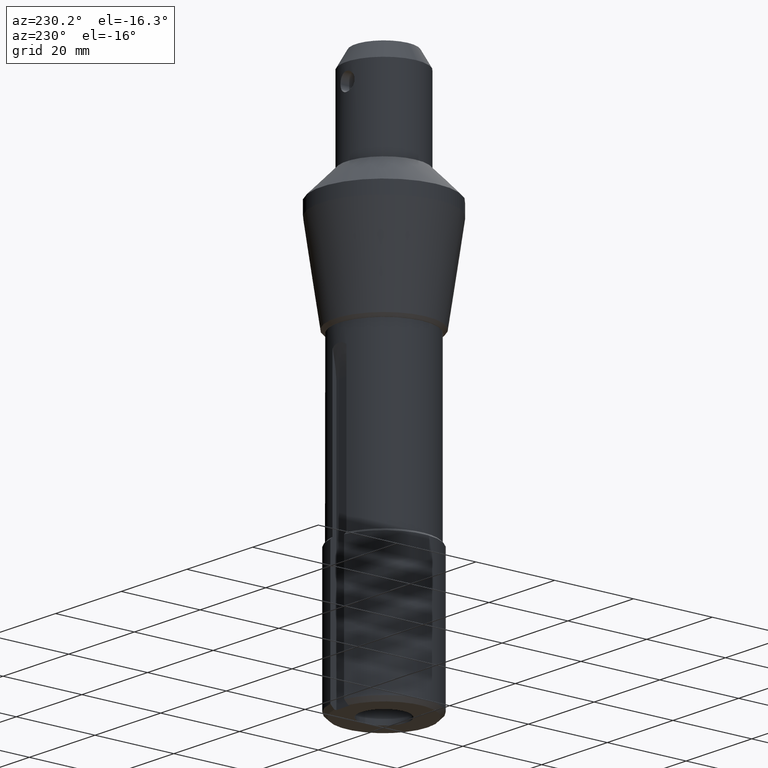
[diagram: clean part render]
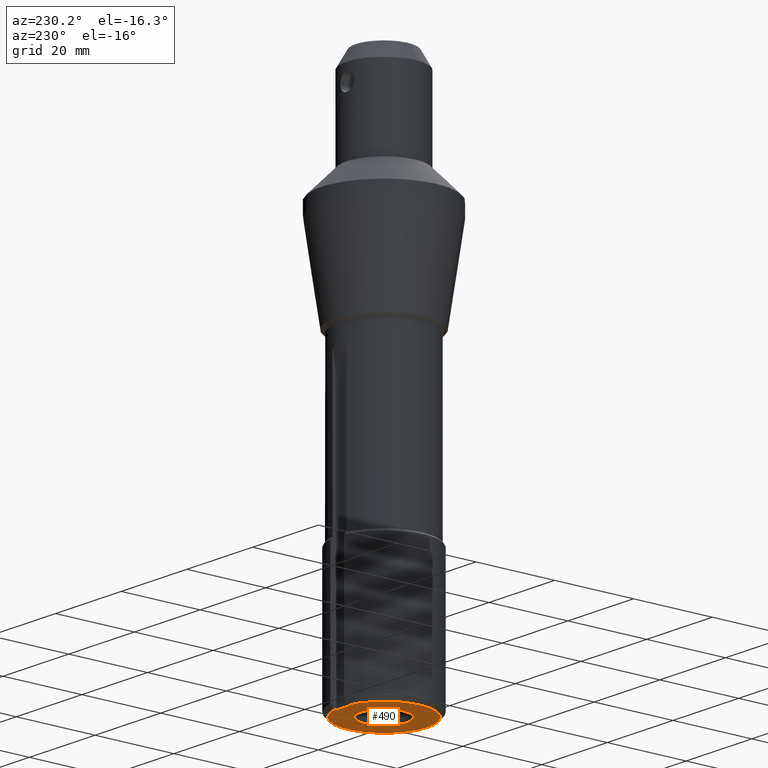
[diagram: same view with one face highlighted and labeled with its STEP entity id]
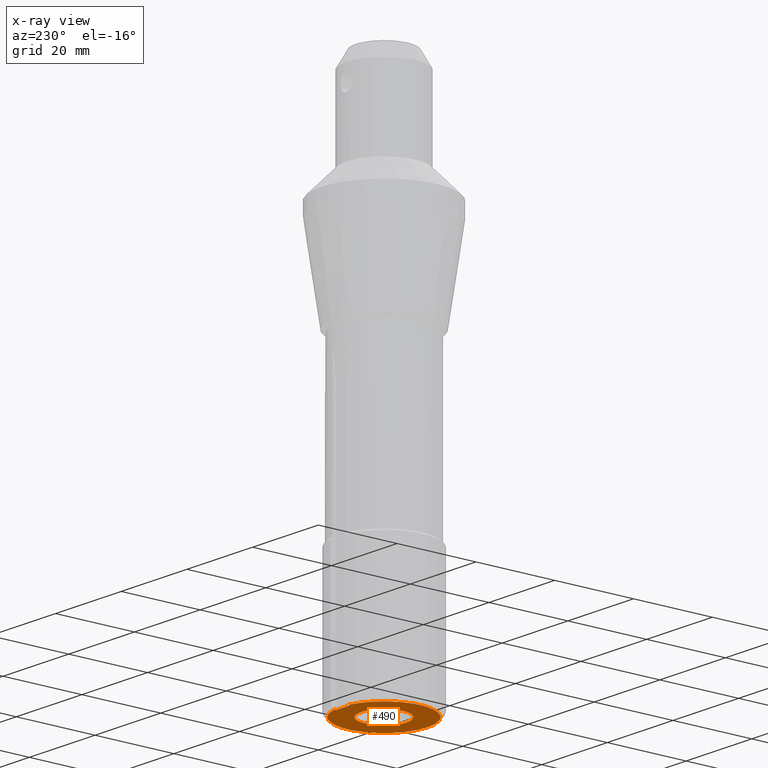
[diagram: x-ray of the same camera — body ghosted, the highlighted face saturated]
A machine part, auxiliary view. The second image highlights one B-rep face of the part: STEP entity #490.
The next image is the same camera in x-ray: the body ghosted, the highlighted face saturated — about 0% of this face is hidden behind the body in this view.
In plain terms, the highlighted planar face has unit normal (0, -0, 1).
Its self-contained STEP definition (entity closure, byte-faithful):
#55 = AXIS2_PLACEMENT_3D ( 'NONE', #510, #66, #755 ) ;
#64 = CARTESIAN_POINT ( 'NONE',  ( 0.0000000000000000000, 0.0000000000000000000, -101.5999999999998664 ) ) ;
#66 = DIRECTION ( 'NONE',  ( 0.0000000000000000000, -0.0000000000000000000, 1.000000000000000000 ) ) ;
#80 = CARTESIAN_POINT ( 'NONE',  ( 2.100000000000000089, 10.35000000000002274, -101.5999999999998380 ) ) ;
#94 = EDGE_CURVE ( 'NONE', #323, #323, #199, .T. ) ;
#125 = DIRECTION ( 'NONE',  ( -0.0000000000000000000, -0.0000000000000000000, 1.000000000000000000 ) ) ;
#129 = CARTESIAN_POINT ( 'NONE',  ( 0.0000000000000000000, 0.0000000000000000000, -101.5999999999998664 ) ) ;
#133 = CARTESIAN_POINT ( 'NONE',  ( -2.100000000000000089, 10.35000000000002274, -101.5999999999998380 ) ) ;
#140 = DIRECTION ( 'NONE',  ( -0.0000000000000000000, -0.0000000000000000000, 1.000000000000000000 ) ) ;
#143 = CARTESIAN_POINT ( 'NONE',  ( -2.100000000000000089, 10.84861742343229984, -101.5999999999998664 ) ) ;
#174 = ORIENTED_EDGE ( 'NONE', *, *, #94, .T. ) ;
#179 = EDGE_CURVE ( 'NONE', #496, #798, #411, .T. ) ;
#191 = FACE_OUTER_BOUND ( 'NONE', #408, .T. ) ;
#199 = CIRCLE ( 'NONE', #687, 5.749999999999921840 ) ;
#241 = VECTOR ( 'NONE', #261, 1000.000000000000000 ) ;
#261 = DIRECTION ( 'NONE',  ( 0.0000000000000000000, 1.000000000000000000, 0.0000000000000000000 ) ) ;
#318 = DIRECTION ( 'NONE',  ( 1.000000000000000000, 0.0000000000000000000, 0.0000000000000000000 ) ) ;
#323 = VERTEX_POINT ( 'NONE', #640 ) ;
#339 = CARTESIAN_POINT ( 'NONE',  ( 0.0000000000000000000, 10.35000000000002274, -101.5999999999998664 ) ) ;
#381 = DIRECTION ( 'NONE',  ( 0.0000000000000000000, 1.000000000000000000, 0.0000000000000000000 ) ) ;
#390 = VECTOR ( 'NONE', #604, 1000.000000000000000 ) ;
#395 = DIRECTION ( 'NONE',  ( 1.000000000000000000, 0.0000000000000000000, 0.0000000000000000000 ) ) ;
#405 = CARTESIAN_POINT ( 'NONE',  ( -2.100000000000000089, 11.04999999999994920, -101.5999999999998664 ) ) ;
#408 = EDGE_LOOP ( 'NONE', ( #561, #507, #412, #616 ) ) ;
#411 = LINE ( 'NONE', #339, #390 ) ;
#412 = ORIENTED_EDGE ( 'NONE', *, *, #750, .T. ) ;
#421 = EDGE_CURVE ( 'NONE', #552, #549, #809, .T. ) ;
#430 = VECTOR ( 'NONE', #381, 1000.000000000000000 ) ;
#456 = AXIS2_PLACEMENT_3D ( 'NONE', #129, #125, #395 ) ;
#457 = LINE ( 'NONE', #405, #241 ) ;
#490 = ADVANCED_FACE ( 'NONE', ( #761, #191 ), #644, .F. ) ;
#496 = VERTEX_POINT ( 'NONE', #133 ) ;
#507 = ORIENTED_EDGE ( 'NONE', *, *, #179, .T. ) ;
#510 = CARTESIAN_POINT ( 'NONE',  ( 0.0000000000000000000, 11.04999999999994920, -101.5999999999998664 ) ) ;
#549 = VERTEX_POINT ( 'NONE', #704 ) ;
#552 = VERTEX_POINT ( 'NONE', #143 ) ;
#557 = LINE ( 'NONE', #568, #430 ) ;
#561 = ORIENTED_EDGE ( 'NONE', *, *, #790, .F. ) ;
#568 = CARTESIAN_POINT ( 'NONE',  ( 2.100000000000000089, 11.04999999999994920, -101.5999999999998664 ) ) ;
#604 = DIRECTION ( 'NONE',  ( 1.000000000000000000, 0.0000000000000000000, 0.0000000000000000000 ) ) ;
#616 = ORIENTED_EDGE ( 'NONE', *, *, #421, .F. ) ;
#640 = CARTESIAN_POINT ( 'NONE',  ( 5.749999999999921840, 0.0000000000000000000, -101.5999999999998664 ) ) ;
#644 = PLANE ( 'NONE',  #55 ) ;
#687 = AXIS2_PLACEMENT_3D ( 'NONE', #64, #140, #318 ) ;
#704 = CARTESIAN_POINT ( 'NONE',  ( 2.100000000000000089, 10.84861742343229984, -101.5999999999998664 ) ) ;
#722 = EDGE_LOOP ( 'NONE', ( #174 ) ) ;
#750 = EDGE_CURVE ( 'NONE', #798, #549, #557, .T. ) ;
#755 = DIRECTION ( 'NONE',  ( 1.000000000000000000, 0.0000000000000000000, 0.0000000000000000000 ) ) ;
#761 = FACE_BOUND ( 'NONE', #722, .T. ) ;
#790 = EDGE_CURVE ( 'NONE', #496, #552, #457, .T. ) ;
#798 = VERTEX_POINT ( 'NONE', #80 ) ;
#809 = CIRCLE ( 'NONE', #456, 11.04999999999994920 ) ;